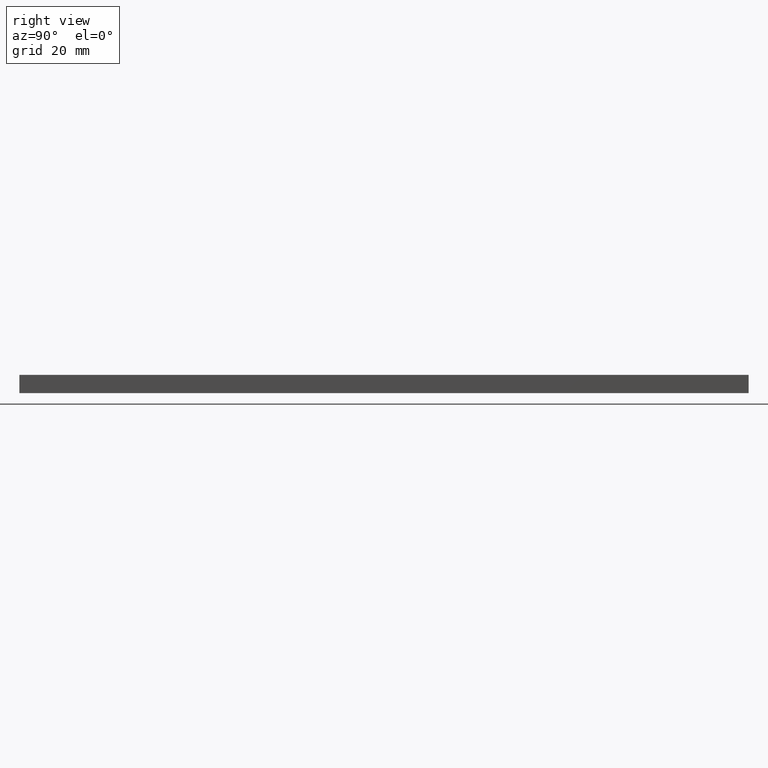
[diagram: clean part render]
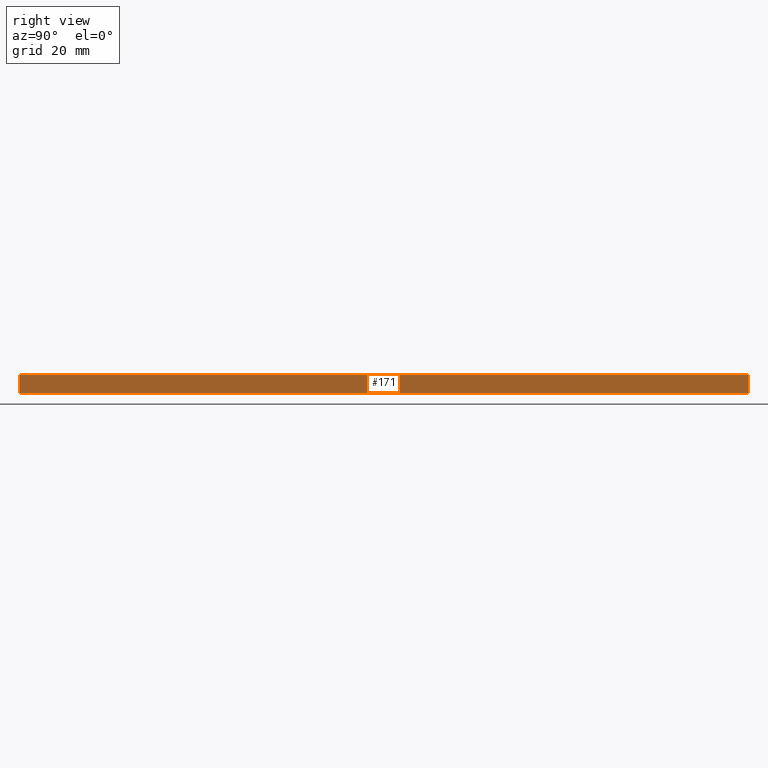
[diagram: same view with one face highlighted and labeled with its STEP entity id]
A machine part, right view. The second image highlights one B-rep face of the part: STEP entity #171.
In plain terms, the highlighted planar face has unit normal (-1, 0, 0).
Its self-contained STEP definition (entity closure, byte-faithful):
#4 = DIRECTION ( 'NONE',  ( -1.000000000000000000, 0.0000000000000000000, 0.0000000000000000000 ) ) ;
#5 = CARTESIAN_POINT ( 'NONE',  ( 15.00000000000000000, 200.0000000000000000, 5.000000000000000000 ) ) ;
#6 = FACE_OUTER_BOUND ( 'NONE', #100, .T. ) ;
#16 = EDGE_CURVE ( 'NONE', #121, #149, #152, .T. ) ;
#25 = EDGE_CURVE ( 'NONE', #37, #121, #69, .T. ) ;
#37 = VERTEX_POINT ( 'NONE', #5 ) ;
#43 = CARTESIAN_POINT ( 'NONE',  ( 15.00000000000000000, 0.0000000000000000000, 5.000000000000000000 ) ) ;
#47 = ORIENTED_EDGE ( 'NONE', *, *, #25, .F. ) ;
#51 = CARTESIAN_POINT ( 'NONE',  ( 15.00000000000000000, 1000.000000000000000, 5.000000000000000000 ) ) ;
#59 = LINE ( 'NONE', #51, #129 ) ;
#62 = DIRECTION ( 'NONE',  ( 0.0000000000000000000, 0.0000000000000000000, 1.000000000000000000 ) ) ;
#65 = DIRECTION ( 'NONE',  ( 0.0000000000000000000, 0.0000000000000000000, -1.000000000000000000 ) ) ;
#69 = LINE ( 'NONE', #114, #111 ) ;
#70 = DIRECTION ( 'NONE',  ( 0.0000000000000000000, -1.000000000000000000, 0.0000000000000000000 ) ) ;
#81 = DIRECTION ( 'NONE',  ( 0.0000000000000000000, 0.0000000000000000000, -1.000000000000000000 ) ) ;
#83 = CARTESIAN_POINT ( 'NONE',  ( 15.00000000000000000, 200.0000000000000000, 0.0000000000000000000 ) ) ;
#99 = DIRECTION ( 'NONE',  ( 0.0000000000000000000, -1.000000000000000000, 0.0000000000000000000 ) ) ;
#100 = EDGE_LOOP ( 'NONE', ( #175, #138, #47, #237 ) ) ;
#111 = VECTOR ( 'NONE', #65, 1000.000000000000000 ) ;
#114 = CARTESIAN_POINT ( 'NONE',  ( 15.00000000000000000, 200.0000000000000000, 5.000000000000000000 ) ) ;
#121 = VERTEX_POINT ( 'NONE', #83 ) ;
#129 = VECTOR ( 'NONE', #99, 1000.000000000000000 ) ;
#133 = VECTOR ( 'NONE', #81, 1000.000000000000000 ) ;
#138 = ORIENTED_EDGE ( 'NONE', *, *, #16, .F. ) ;
#146 = AXIS2_PLACEMENT_3D ( 'NONE', #225, #4, #62 ) ;
#149 = VERTEX_POINT ( 'NONE', #168 ) ;
#152 = LINE ( 'NONE', #196, #200 ) ;
#168 = CARTESIAN_POINT ( 'NONE',  ( 15.00000000000000000, 0.0000000000000000000, 0.0000000000000000000 ) ) ;
#169 = PLANE ( 'NONE',  #146 ) ;
#171 = ADVANCED_FACE ( 'NONE', ( #6 ), #169, .F. ) ;
#172 = LINE ( 'NONE', #214, #133 ) ;
#175 = ORIENTED_EDGE ( 'NONE', *, *, #198, .T. ) ;
#196 = CARTESIAN_POINT ( 'NONE',  ( 15.00000000000000000, 1000.000000000000000, 0.0000000000000000000 ) ) ;
#198 = EDGE_CURVE ( 'NONE', #223, #149, #172, .T. ) ;
#200 = VECTOR ( 'NONE', #70, 1000.000000000000000 ) ;
#212 = EDGE_CURVE ( 'NONE', #37, #223, #59, .T. ) ;
#214 = CARTESIAN_POINT ( 'NONE',  ( 15.00000000000000000, 0.0000000000000000000, 5.000000000000000000 ) ) ;
#223 = VERTEX_POINT ( 'NONE', #43 ) ;
#225 = CARTESIAN_POINT ( 'NONE',  ( 15.00000000000000000, 1000.000000000000000, 5.000000000000000000 ) ) ;
#237 = ORIENTED_EDGE ( 'NONE', *, *, #212, .T. ) ;